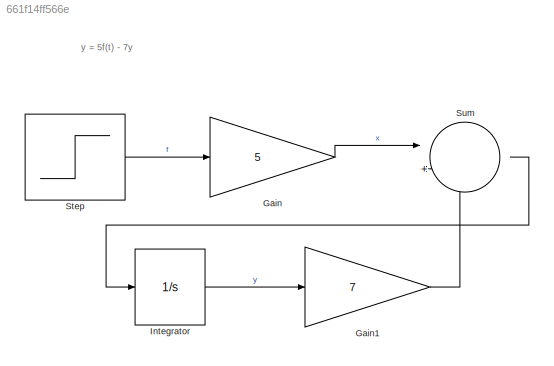
MODEL slx_661f14ff566e
KIND model
CONFIG AbsTol = auto
CONFIG EnableMultiTasking = off
CONFIG FixedStep = auto
CONFIG MaxStep = auto
CONFIG MinStep = auto
CONFIG RelTol = 1e-3
CONFIG SampleTimeConstraint = Unconstrained
CONFIG SolverName = VariableStepAuto
CONFIG StartTime = 0.0
CONFIG StopTime = 10.0
BLOCK [Gain] Gain
  Gain = 5
BLOCK [Gain] Gain1
  Gain = 7
BLOCK [Integrator] Integrator
BLOCK [Step] Step
  SampleTime = 0
BLOCK [Sum] Sum
  Inputs = |+-
ANNOTATION (root): y = 5f(t) - 7y
LINE Gain1:1 -> Sum:2
LINE Gain:1 -> Sum:1
LINE Integrator:1 -> Gain1:1
LINE Step:1 -> Gain:1
LINE Sum:1 -> Integrator:1
